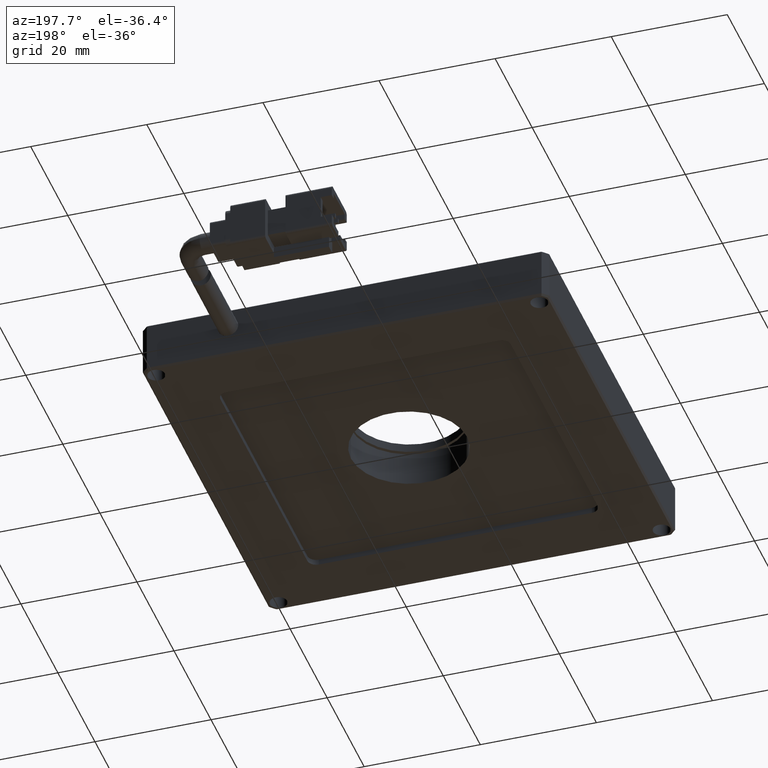
[diagram: clean part render]
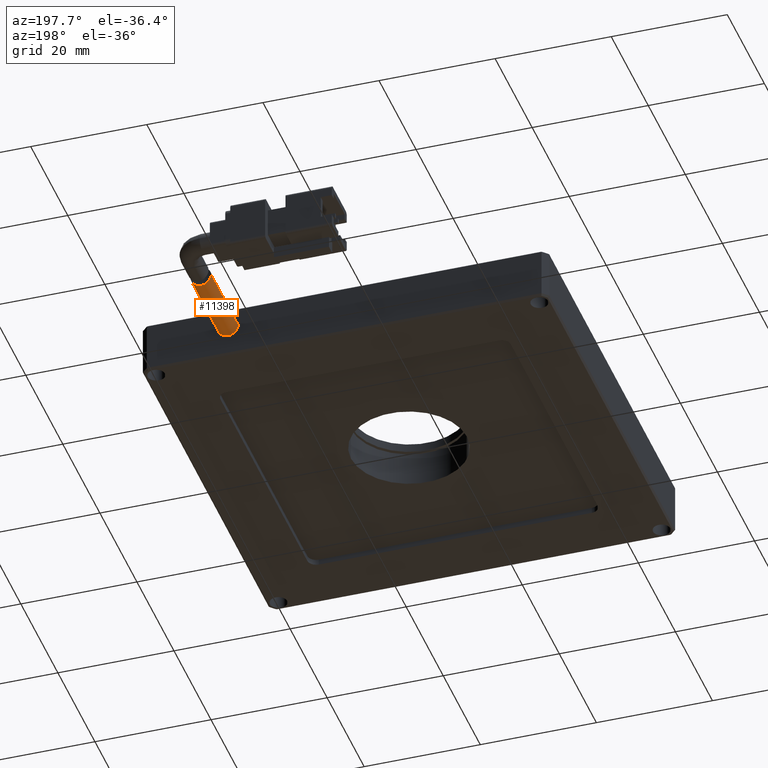
[diagram: same view with one face highlighted and labeled with its STEP entity id]
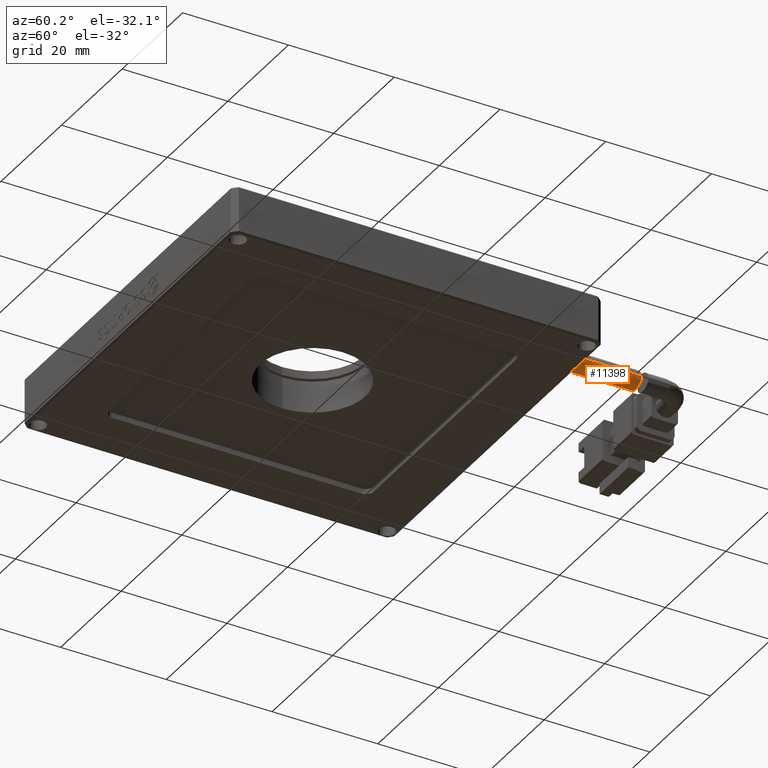
[diagram: same view with one face highlighted and labeled with its STEP entity id]
A machine part, auxiliary view. The second image highlights one B-rep face of the part: STEP entity #11398.
A second angle (auxiliary view) of the same face is appended — the face is thin or edge-on in the first view.
In plain terms, the highlighted cylindrical surface (edge-blend (fillet) strip) has radius 1.75 mm, axis along (0, -1, 0).
Its self-contained STEP definition (entity closure, byte-faithful):
#389 = CARTESIAN_POINT ( 'NONE',  ( 5.783692893400999700, 87.27963314474406800, 2.499999999999999600 ) ) ;
#394 = CARTESIAN_POINT ( 'NONE',  ( 7.533692893400998800, 72.53591370558376600, 2.499999999999999600 ) ) ;
#533 = CARTESIAN_POINT ( 'NONE',  ( 6.456194948723058300, 87.13213201537873000, 1.102448616356782200 ) ) ;
#624 = VERTEX_POINT ( 'NONE', #19033 ) ;
#744 = CARTESIAN_POINT ( 'NONE',  ( 7.647412367812100000, 87.09188387440269700, 0.7499424972445346600 ) ) ;
#1239 = B_SPLINE_CURVE_WITH_KNOTS ( 'NONE', 3,
 ( #389, #13523, #15459, #10363, #7351, #8726, #5500, #5703, #20243, #533, #10574, #3906, #8938, #744, #18870, #20523, #15261, #13733, #18656, #12221, #13656, #15390, #2174, #13590, #5575, #18723 ),
 .UNSPECIFIED., .F., .F.,
 ( 4, 2, 2, 2, 2, 2, 2, 2, 2, 2, 2, 2, 4 ),
 ( 0.005490571999675045500, 0.005833718808239130900, 0.006176865616803215400, 0.006520012425367300800, 0.006863159233931386200, 0.007549452851059561300, 0.008235746468187735500, 0.008578893276751823500, 0.008922040085315909700, 0.009608333702444073500, 0.009951480511008158100, 0.01029462731957224300, 0.01098092093670041700 ),
 .UNSPECIFIED. ) ;
#1666 = VECTOR ( 'NONE', #9482, 1000.000000000000000 ) ;
#2174 = CARTESIAN_POINT ( 'NONE',  ( 9.105367645551460500, 87.28166892497377200, 1.721898173489206000 ) ) ;
#2181 = EDGE_CURVE ( 'NONE', #624, #8720, #11930, .T. ) ;
#3099 = CARTESIAN_POINT ( 'NONE',  ( 7.533692893400998800, 92.53591370558376600, 2.499999999999999600 ) ) ;
#3906 = CARTESIAN_POINT ( 'NONE',  ( 7.072443422606522900, 87.08077833136782400, 0.7965229567925741200 ) ) ;
#4596 = EDGE_CURVE ( 'NONE', #19869, #8720, #20059, .T. ) ;
#4769 = EDGE_CURVE ( 'NONE', #13434, #19869, #7404, .T. ) ;
#5455 = ORIENTED_EDGE ( 'NONE', *, *, #18798, .T. ) ;
#5500 = CARTESIAN_POINT ( 'NONE',  ( 6.015070837138541300, 87.21717902946288300, 1.622898425157614200 ) ) ;
#5575 = CARTESIAN_POINT ( 'NONE',  ( 9.283692893400994400, 87.31675363808105300, 2.267903630600319100 ) ) ;
#5651 = DIRECTION ( 'NONE',  ( -1.000000000000000000, 0.0000000000000000000, 0.0000000000000000000 ) ) ;
#5703 = CARTESIAN_POINT ( 'NONE',  ( 6.141824505594333200, 87.18888617685038900, 1.433124883886459000 ) ) ;
#6130 = AXIS2_PLACEMENT_3D ( 'NONE', #3099, #16402, #10215 ) ;
#7028 = ORIENTED_EDGE ( 'NONE', *, *, #4596, .T. ) ;
#7351 = CARTESIAN_POINT ( 'NONE',  ( 5.873612342898662000, 87.25365909683586100, 1.934548446059109800 ) ) ;
#7404 = LINE ( 'NONE', #15614, #13297 ) ;
#8720 = VERTEX_POINT ( 'NONE', #18826 ) ;
#8726 = CARTESIAN_POINT ( 'NONE',  ( 5.961414590836603200, 87.23057232460531900, 1.723119164031233100 ) ) ;
#8938 = CARTESIAN_POINT ( 'NONE',  ( 7.303609508152738300, 87.07853314934604300, 0.7501156715151637800 ) ) ;
#9482 = DIRECTION ( 'NONE',  ( 0.0000000000000000000, -1.000000000000000000, 0.0000000000000000000 ) ) ;
#10215 = DIRECTION ( 'NONE',  ( -1.000000000000000000, 0.0000000000000000000, 0.0000000000000000000 ) ) ;
#10363 = CARTESIAN_POINT ( 'NONE',  ( 5.839799577660306400, 87.26326324957268800, 2.045820362761305000 ) ) ;
#10374 = DIRECTION ( 'NONE',  ( -0.0000000000000000000, 1.000000000000000000, -0.0000000000000000000 ) ) ;
#10476 = ORIENTED_EDGE ( 'NONE', *, *, #4769, .T. ) ;
#10574 = CARTESIAN_POINT ( 'NONE',  ( 6.650991591365596800, 87.10747189790794200, 0.9717907465180347600 ) ) ;
#11231 = AXIS2_PLACEMENT_3D ( 'NONE', #394, #10374, #5651 ) ;
#11398 = ADVANCED_FACE ( 'NONE', ( #14216 ), #14193, .T. ) ;
#11930 = LINE ( 'NONE', #19424, #1666 ) ;
#12221 = CARTESIAN_POINT ( 'NONE',  ( 8.850995387490847600, 87.23516816097847500, 1.342257559800922500 ) ) ;
#13251 = CARTESIAN_POINT ( 'NONE',  ( 9.283692893400997900, 72.53591370558376600, 2.499999999999999600 ) ) ;
#13297 = VECTOR ( 'NONE', #14244, 1000.000000000000000 ) ;
#13434 = VERTEX_POINT ( 'NONE', #16215 ) ;
#13523 = CARTESIAN_POINT ( 'NONE',  ( 5.783692893401001500, 87.27963314474408200, 2.383923733012482500 ) ) ;
#13590 = CARTESIAN_POINT ( 'NONE',  ( 9.237321890908127400, 87.30721451082843000, 2.038953196826492700 ) ) ;
#13656 = CARTESIAN_POINT ( 'NONE',  ( 8.923233507894446200, 87.24796616752746600, 1.430112628889963500 ) ) ;
#13733 = CARTESIAN_POINT ( 'NONE',  ( 8.415335802502562900, 87.16545841168492400, 0.9709568532354124800 ) ) ;
#14193 = CYLINDRICAL_SURFACE ( 'NONE', #6130, 1.749999999999999800 ) ;
#14216 = FACE_OUTER_BOUND ( 'NONE', #16080, .T. ) ;
#14244 = DIRECTION ( 'NONE',  ( 0.0000000000000000000, -1.000000000000000000, 0.0000000000000000000 ) ) ;
#15043 = ORIENTED_EDGE ( 'NONE', *, *, #2181, .F. ) ;
#15261 = CARTESIAN_POINT ( 'NONE',  ( 8.096973797391372700, 87.12835028261707700, 0.8391549096441921500 ) ) ;
#15390 = CARTESIAN_POINT ( 'NONE',  ( 9.050230990242498700, 87.27117526168970600, 1.619321677900533900 ) ) ;
#15459 = CARTESIAN_POINT ( 'NONE',  ( 5.795125867308645900, 87.27617583041383400, 2.269916528673474600 ) ) ;
#15614 = CARTESIAN_POINT ( 'NONE',  ( 9.283692893400997900, 92.53591370558376600, 2.499999999999999600 ) ) ;
#16080 = EDGE_LOOP ( 'NONE', ( #5455, #10476, #7028, #15043 ) ) ;
#16215 = CARTESIAN_POINT ( 'NONE',  ( 9.283692893400996100, 87.31675363808106700, 2.500000000000000000 ) ) ;
#16402 = DIRECTION ( 'NONE',  ( 0.0000000000000000000, -1.000000000000000000, 0.0000000000000000000 ) ) ;
#18656 = CARTESIAN_POINT ( 'NONE',  ( 8.607445882395911200, 87.19454194195216700, 1.099225859134221400 ) ) ;
#18723 = CARTESIAN_POINT ( 'NONE',  ( 9.283692893400996100, 87.31675363808106700, 2.500000000000000000 ) ) ;
#18798 = EDGE_CURVE ( 'NONE', #624, #13434, #1239, .T. ) ;
#18826 = CARTESIAN_POINT ( 'NONE',  ( 5.783692893400998800, 72.53591370558376600, 2.499999999999999600 ) ) ;
#18870 = CARTESIAN_POINT ( 'NONE',  ( 7.763629377957539800, 87.09908745143774000, 0.7614090761753261600 ) ) ;
#19033 = CARTESIAN_POINT ( 'NONE',  ( 5.783692893400999700, 87.27963314474406800, 2.499999999999999600 ) ) ;
#19424 = CARTESIAN_POINT ( 'NONE',  ( 5.783692893400998800, 92.53591370558376600, 2.499999999999999600 ) ) ;
#19869 = VERTEX_POINT ( 'NONE', #13251 ) ;
#20059 = CIRCLE ( 'NONE', #11231, 1.749999999999999800 ) ;
#20243 = CARTESIAN_POINT ( 'NONE',  ( 6.215270633200740100, 87.17397269824587600, 1.343636879483786300 ) ) ;
#20523 = CARTESIAN_POINT ( 'NONE',  ( 7.987860444632483200, 87.11731689990507700, 0.8060988745667142500 ) ) ;